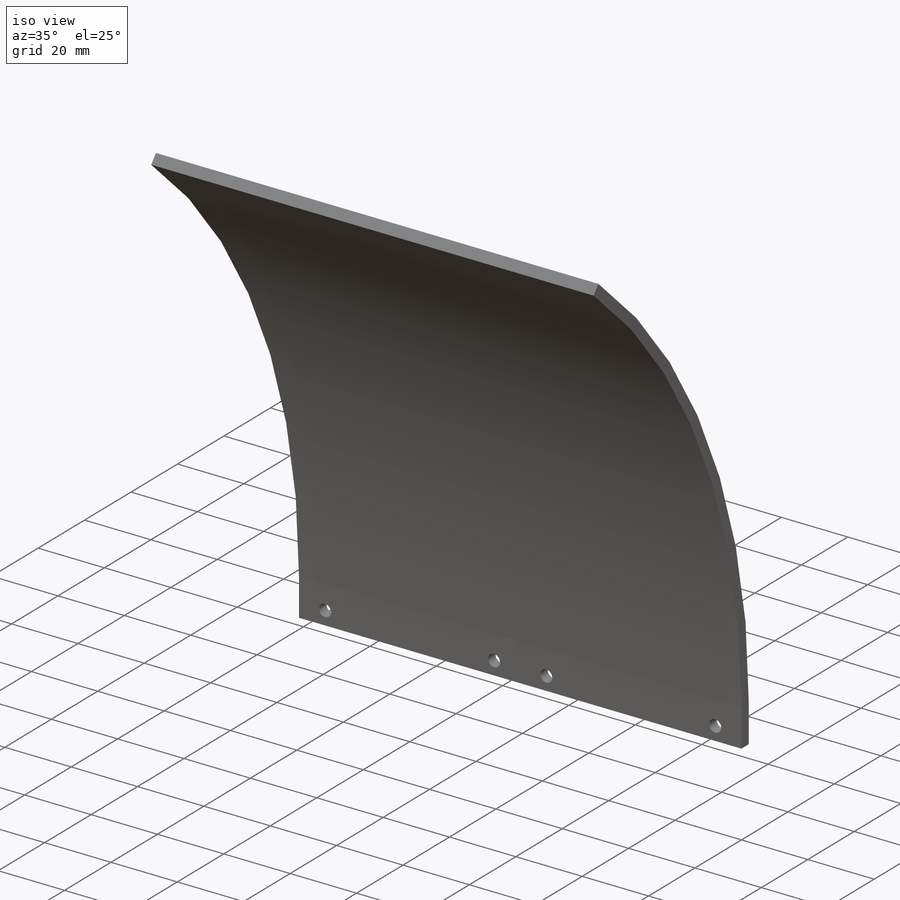
[diagram: iso view]
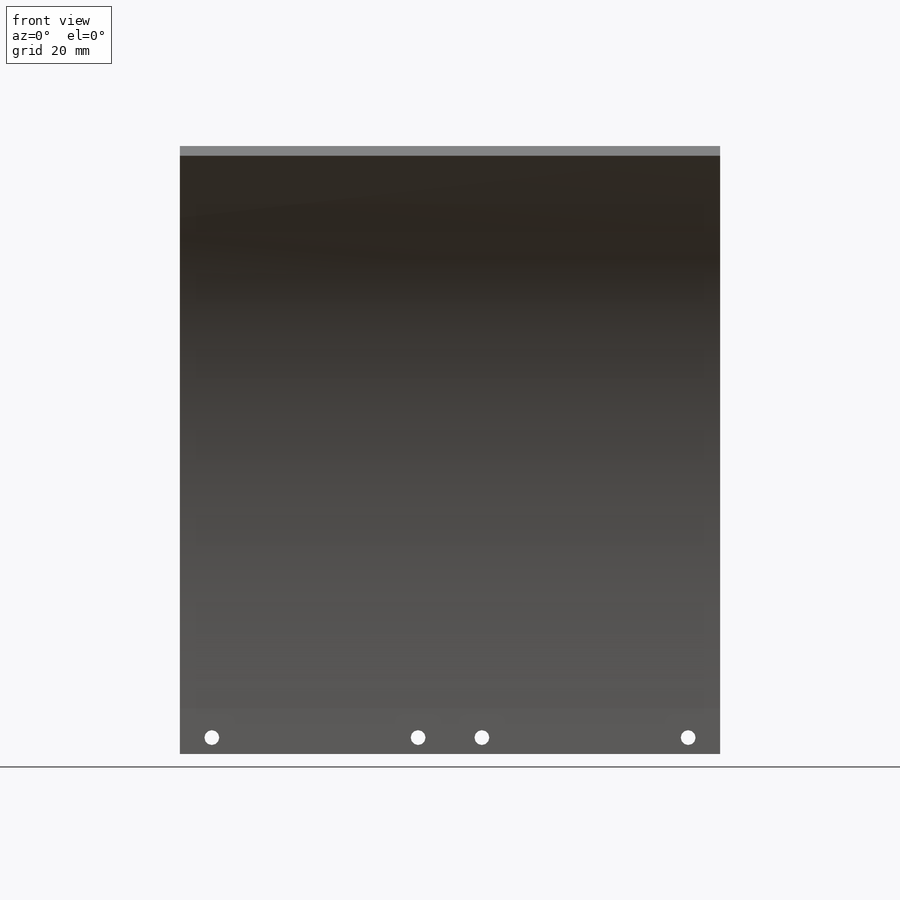
[diagram: front view]
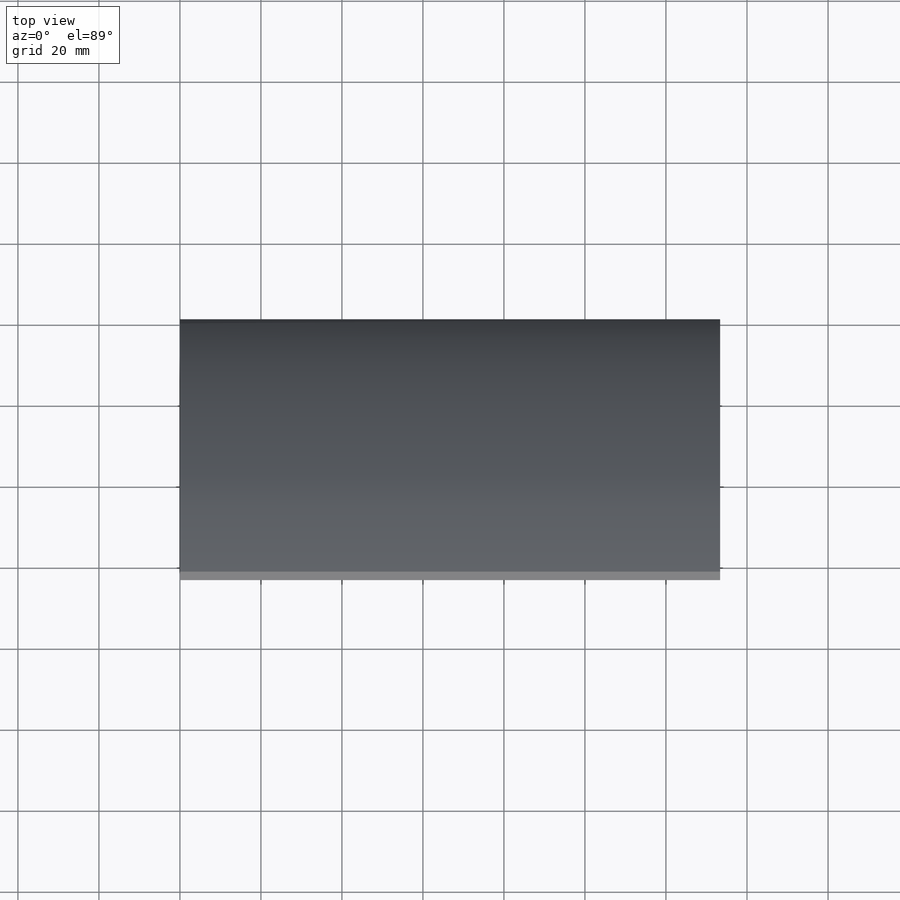
[diagram: top view]
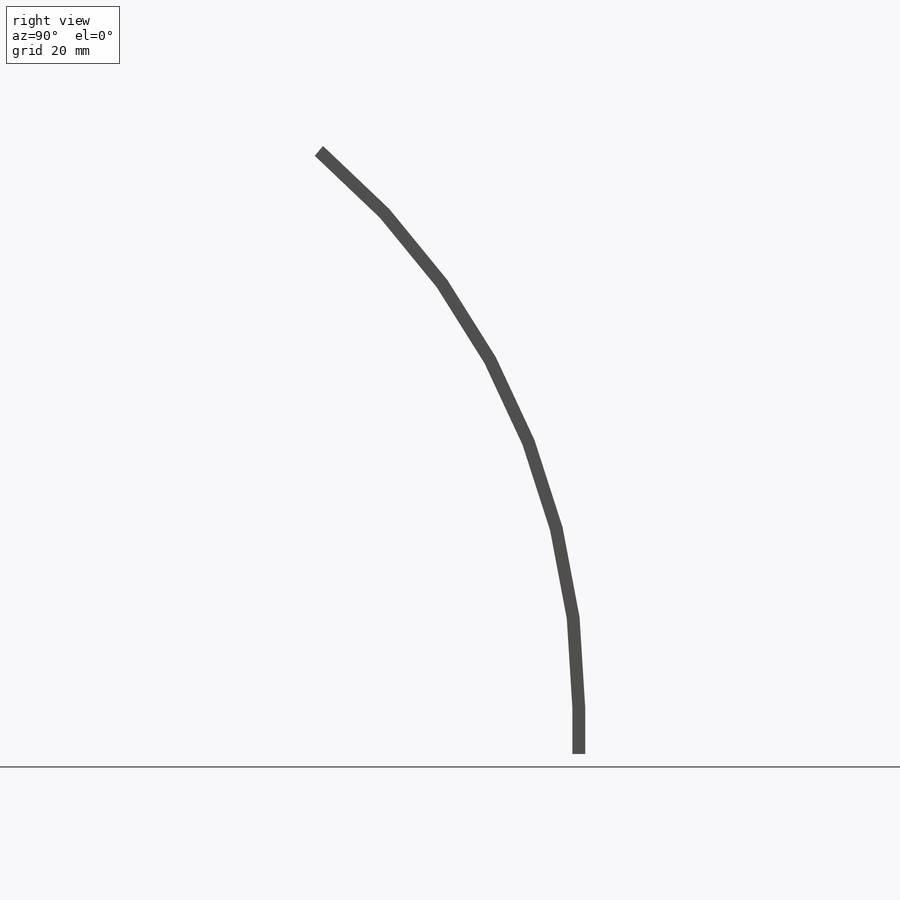
[diagram: right view]
SOLIDWORKS PART (.sldprt)
format: sldprt  version: not decoded by parser v0  size: 205,824 bytes
history: native  units: mm
features: sketch x4, extrude x2, cut_extrude x2, material x1 (+12 scaffold rows collapsed)
feature tree (21):
  scaffold x12  (default folders/planes/origin — collapsed)
  material  "Material <not specified>"
  sketch  "Sketch1"  dims[D1=356.108mm D2=3.175mm D3=~59.868574mm]
  extrude  "Boss-Extrude1"  Depth=133.35mm
  sketch  "Sketch2"  dims[c1.D2=181.229mm c1.D1=178.054mm c2.D1=50.0deg c2.D2=~25.519235mm]
  cut_extrude  "Cut-Extrude1"  [1 undecoded]
  sketch  "Sketch3"  dims[D1=3.175mm D2=133.35mm]
  extrude  "Boss-Extrude2"  Depth=11.303mm
  sketch  "Sketch4"  dims[c1.D1=~16.645572mm c1.D3=3.6576mm c1.D6=3.6576mm c1.D4=~11.201496mm c2.D6=3.6576mm c2.D1=7.874mm c2.D2=4.064mm c2.D4=7.874mm c2.D5=4.064mm c3.D4=7.874mm c3.D5=4.064mm]
  cut_extrude  "Cut-Extrude2"  [1 undecoded]
decode coverage: 6 of 8 modeling features carry decoded parameters
note: ~ marks probable driven/reference dimensions
note: 2 parameter values undecoded
note: suppression state not decoded; provenance and decode notes live in map.json
